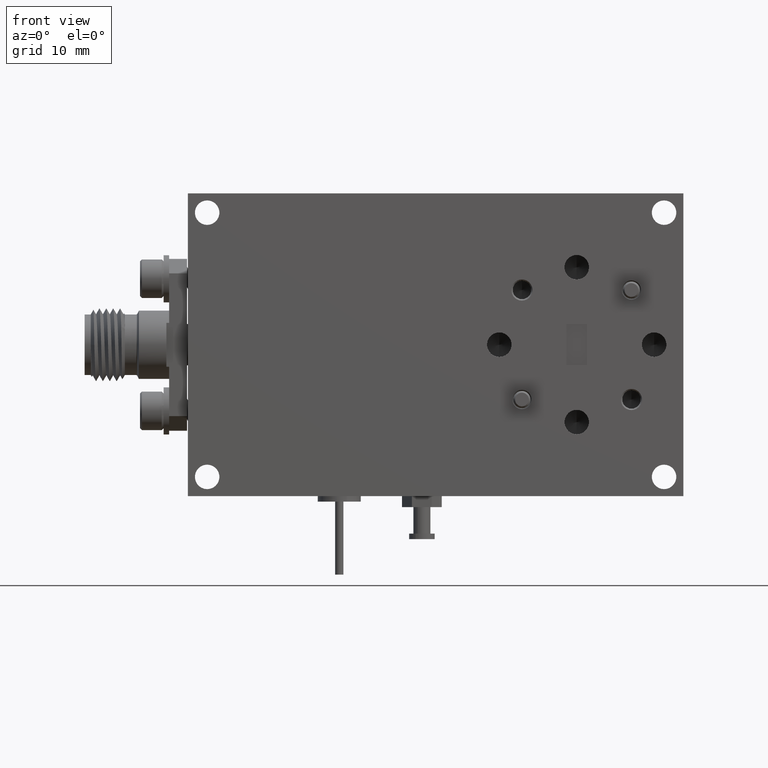
[diagram: clean part render]
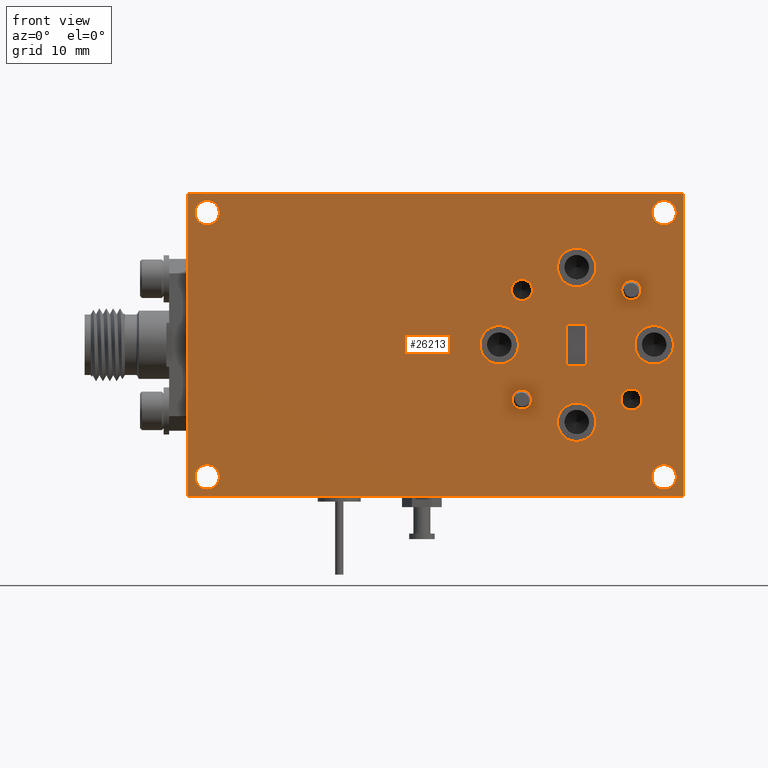
[diagram: same view with one face highlighted and labeled with its STEP entity id]
A machine part, front view. The second image highlights one B-rep face of the part: STEP entity #26213.
In plain terms, the highlighted planar face has unit normal (0, 1, 0).
Its self-contained STEP definition (entity closure, byte-faithful):
#32 = DIRECTION ( 'NONE',  ( 0.0000000000000000000, -1.000000000000000000, 0.0000000000000000000 ) ) ;
#84 = LINE ( 'NONE', #8570, #2586 ) ;
#100 = VERTEX_POINT ( 'NONE', #24952 ) ;
#256 = DIRECTION ( 'NONE',  ( 0.0000000000000000000, 0.0000000000000000000, 1.000000000000000000 ) ) ;
#338 = VERTEX_POINT ( 'NONE', #4029 ) ;
#397 = ORIENTED_EDGE ( 'NONE', *, *, #1543, .F. ) ;
#424 = FACE_BOUND ( 'NONE', #15755, .T. ) ;
#646 = ORIENTED_EDGE ( 'NONE', *, *, #3754, .T. ) ;
#726 = DIRECTION ( 'NONE',  ( 0.0000000000000000000, 0.0000000000000000000, -1.000000000000000000 ) ) ;
#734 = VERTEX_POINT ( 'NONE', #25249 ) ;
#801 = FACE_BOUND ( 'NONE', #25678, .T. ) ;
#880 = CIRCLE ( 'NONE', #8306, 0.06999999999999999300 ) ;
#1078 = CIRCLE ( 'NONE', #1275, 0.03850000000000001300 ) ;
#1150 = AXIS2_PLACEMENT_3D ( 'NONE', #1228, #24133, #17212 ) ;
#1228 = CARTESIAN_POINT ( 'NONE',  ( 0.2312499999999998400, 0.0000000000000000000, -7.185108418705292300E-018 ) ) ;
#1275 = AXIS2_PLACEMENT_3D ( 'NONE', #15384, #10924, #17459 ) ;
#1403 = VERTEX_POINT ( 'NONE', #3476 ) ;
#1413 = CARTESIAN_POINT ( 'NONE',  ( -0.8300000000000001800, 0.0000000000000000000, -0.4800000000000000900 ) ) ;
#1543 = EDGE_CURVE ( 'NONE', #10902, #17982, #9129, .T. ) ;
#1558 = CARTESIAN_POINT ( 'NONE',  ( 0.4754999999999998700, 0.0000000000000000000, -0.07399999999999998200 ) ) ;
#1801 = EDGE_CURVE ( 'NONE', #6308, #20392, #13043, .T. ) ;
#2039 = CARTESIAN_POINT ( 'NONE',  ( 0.5124999999999999600, 0.0000000000000000000, 0.2812500000000000000 ) ) ;
#2103 = EDGE_CURVE ( 'NONE', #23466, #15167, #3784, .T. ) ;
#2172 = LINE ( 'NONE', #25299, #19980 ) ;
#2186 = ORIENTED_EDGE ( 'NONE', *, *, #16759, .F. ) ;
#2217 = FACE_BOUND ( 'NONE', #18613, .T. ) ;
#2254 = VERTEX_POINT ( 'NONE', #21039 ) ;
#2334 = CARTESIAN_POINT ( 'NONE',  ( 0.8300000000000004000, 0.0000000000000000000, 0.4354999999999997800 ) ) ;
#2344 = ORIENTED_EDGE ( 'NONE', *, *, #5385, .T. ) ;
#2449 = CARTESIAN_POINT ( 'NONE',  ( 0.7113737822087165000, 0.0000000000000000000, 0.1988737822087165200 ) ) ;
#2514 = CARTESIAN_POINT ( 'NONE',  ( 0.3136262177912835200, 0.0000000000000000000, 0.1988737822087165200 ) ) ;
#2558 = CIRCLE ( 'NONE', #3879, 0.03500000000000003800 ) ;
#2586 = VECTOR ( 'NONE', #24116, 39.37007874015748100 ) ;
#2593 = CARTESIAN_POINT ( 'NONE',  ( 0.8300000000000004000, 0.0000000000000000000, -0.5245000000000000800 ) ) ;
#2825 = DIRECTION ( 'NONE',  ( -0.0000000000000000000, -1.000000000000000000, -0.0000000000000000000 ) ) ;
#3058 = CARTESIAN_POINT ( 'NONE',  ( 0.7113737822087165000, 0.0000000000000000000, -0.1603737822087164300 ) ) ;
#3080 = AXIS2_PLACEMENT_3D ( 'NONE', #19277, #5422, #16599 ) ;
#3133 = EDGE_CURVE ( 'NONE', #22204, #23770, #15988, .T. ) ;
#3204 = CIRCLE ( 'NONE', #22813, 0.04449999999999989400 ) ;
#3395 = CARTESIAN_POINT ( 'NONE',  ( 0.3136262177912834700, 0.0000000000000000000, -0.2338737822087164900 ) ) ;
#3476 = CARTESIAN_POINT ( 'NONE',  ( 0.7113737822087165000, 0.0000000000000000000, 0.1638737822087164800 ) ) ;
#3526 = DIRECTION ( 'NONE',  ( 1.000000000000000000, -0.0000000000000000000, -1.153652024351462300E-016 ) ) ;
#3754 = EDGE_CURVE ( 'NONE', #22008, #23466, #20372, .T. ) ;
#3784 = LINE ( 'NONE', #28330, #8380 ) ;
#3864 = ORIENTED_EDGE ( 'NONE', *, *, #5215, .T. ) ;
#3879 = AXIS2_PLACEMENT_3D ( 'NONE', #9067, #29184, #6673 ) ;
#3946 = EDGE_CURVE ( 'NONE', #338, #5837, #84, .T. ) ;
#3967 = DIRECTION ( 'NONE',  ( 0.0000000000000000000, 0.0000000000000000000, -1.000000000000000000 ) ) ;
#4029 = CARTESIAN_POINT ( 'NONE',  ( 0.8999999999999998000, 0.0000000000000000000, -0.5500000000000002700 ) ) ;
#4389 = ORIENTED_EDGE ( 'NONE', *, *, #13274, .F. ) ;
#4547 = EDGE_CURVE ( 'NONE', #23770, #22204, #10063, .T. ) ;
#4587 = CIRCLE ( 'NONE', #9765, 0.04449999999999989400 ) ;
#4702 = AXIS2_PLACEMENT_3D ( 'NONE', #25170, #11507, #256 ) ;
#4826 = DIRECTION ( 'NONE',  ( 0.0000000000000000000, 0.0000000000000000000, -1.000000000000000000 ) ) ;
#4852 = DIRECTION ( 'NONE',  ( 0.0000000000000000000, -1.000000000000000000, 0.0000000000000000000 ) ) ;
#5007 = DIRECTION ( 'NONE',  ( 0.0000000000000000000, 0.0000000000000000000, -1.000000000000000000 ) ) ;
#5008 = CARTESIAN_POINT ( 'NONE',  ( 0.8999999999999998000, 0.0000000000000000000, 0.5499999999999998200 ) ) ;
#5115 = DIRECTION ( 'NONE',  ( 0.0000000000000000000, -1.000000000000000000, 0.0000000000000000000 ) ) ;
#5215 = EDGE_CURVE ( 'NONE', #6987, #29228, #11788, .T. ) ;
#5252 = EDGE_CURVE ( 'NONE', #1403, #24943, #26760, .T. ) ;
#5260 = CARTESIAN_POINT ( 'NONE',  ( 0.5494999999999998800, 0.0000000000000000000, -0.07399999999999999600 ) ) ;
#5316 = CARTESIAN_POINT ( 'NONE',  ( 0.2312499999999998400, 0.0000000000000000000, -7.185108418705292300E-018 ) ) ;
#5334 = AXIS2_PLACEMENT_3D ( 'NONE', #17742, #20342, #6462 ) ;
#5385 = EDGE_CURVE ( 'NONE', #15167, #28915, #17785, .T. ) ;
#5418 = ORIENTED_EDGE ( 'NONE', *, *, #3946, .F. ) ;
#5422 = DIRECTION ( 'NONE',  ( -0.0000000000000000000, 1.000000000000000000, -0.0000000000000000000 ) ) ;
#5684 = EDGE_CURVE ( 'NONE', #22055, #11793, #10730, .T. ) ;
#5749 = EDGE_CURVE ( 'NONE', #11969, #16284, #1078, .T. ) ;
#5807 = FACE_OUTER_BOUND ( 'NONE', #26139, .T. ) ;
#5837 = VERTEX_POINT ( 'NONE', #29079 ) ;
#5959 = CARTESIAN_POINT ( 'NONE',  ( 0.8300000000000004000, 0.0000000000000000000, 0.5244999999999995200 ) ) ;
#6038 = DIRECTION ( 'NONE',  ( 0.0000000000000000000, 0.0000000000000000000, -1.000000000000000000 ) ) ;
#6244 = CARTESIAN_POINT ( 'NONE',  ( 0.7937499999999999600, 0.0000000000000000000, -7.185108418705292300E-018 ) ) ;
#6307 = ORIENTED_EDGE ( 'NONE', *, *, #13516, .F. ) ;
#6308 = VERTEX_POINT ( 'NONE', #5959 ) ;
#6409 = EDGE_CURVE ( 'NONE', #734, #8645, #3204, .T. ) ;
#6462 = DIRECTION ( 'NONE',  ( 0.0000000000000000000, 0.0000000000000000000, -1.000000000000000000 ) ) ;
#6521 = CARTESIAN_POINT ( 'NONE',  ( -0.8300000000000001800, 0.0000000000000000000, -0.5244999999999999700 ) ) ;
#6612 = CARTESIAN_POINT ( 'NONE',  ( 0.8300000000000004000, 0.0000000000000000000, 0.4799999999999996500 ) ) ;
#6650 = AXIS2_PLACEMENT_3D ( 'NONE', #1413, #14878, #17388 ) ;
#6661 = CARTESIAN_POINT ( 'NONE',  ( 0.5494999999999998800, 0.0000000000000000000, -0.07399999999999999600 ) ) ;
#6669 = ORIENTED_EDGE ( 'NONE', *, *, #17326, .T. ) ;
#6673 = DIRECTION ( 'NONE',  ( 0.0000000000000000000, 0.0000000000000000000, -1.000000000000000000 ) ) ;
#6696 = VERTEX_POINT ( 'NONE', #22832 ) ;
#6708 = DIRECTION ( 'NONE',  ( -0.0000000000000000000, 1.000000000000000000, -0.0000000000000000000 ) ) ;
#6934 = DIRECTION ( 'NONE',  ( 0.0000000000000000000, -0.0000000000000000000, 1.000000000000000000 ) ) ;
#6987 = VERTEX_POINT ( 'NONE', #2593 ) ;
#7063 = EDGE_CURVE ( 'NONE', #24560, #21839, #15604, .T. ) ;
#7295 = DIRECTION ( 'NONE',  ( 0.0000000000000000000, 0.0000000000000000000, -1.000000000000000000 ) ) ;
#7319 = CARTESIAN_POINT ( 'NONE',  ( 0.7113737822087165000, 0.0000000000000000000, -0.1988737822087164600 ) ) ;
#7328 = AXIS2_PLACEMENT_3D ( 'NONE', #16333, #4852, #21127 ) ;
#7535 = ORIENTED_EDGE ( 'NONE', *, *, #5684, .F. ) ;
#7608 = ORIENTED_EDGE ( 'NONE', *, *, #15241, .F. ) ;
#7827 = CARTESIAN_POINT ( 'NONE',  ( 0.5494999999999998800, 0.0000000000000000000, 0.07399999999999999600 ) ) ;
#7875 = DIRECTION ( 'NONE',  ( 0.0000000000000000000, -1.000000000000000000, 0.0000000000000000000 ) ) ;
#8306 = AXIS2_PLACEMENT_3D ( 'NONE', #17701, #28726, #6038 ) ;
#8345 = VERTEX_POINT ( 'NONE', #27290 ) ;
#8348 = VERTEX_POINT ( 'NONE', #11538 ) ;
#8380 = VECTOR ( 'NONE', #3526, 39.37007874015748100 ) ;
#8562 = AXIS2_PLACEMENT_3D ( 'NONE', #6612, #6708, #13368 ) ;
#8570 = CARTESIAN_POINT ( 'NONE',  ( 0.8999999999999998000, 0.0000000000000000000, -0.5500000000000002700 ) ) ;
#8583 = VECTOR ( 'NONE', #8741, 39.37007874015748100 ) ;
#8641 = VECTOR ( 'NONE', #14557, 39.37007874015748100 ) ;
#8645 = VERTEX_POINT ( 'NONE', #23378 ) ;
#8741 = DIRECTION ( 'NONE',  ( -0.0000000000000000000, -0.0000000000000000000, -1.000000000000000000 ) ) ;
#8759 = ORIENTED_EDGE ( 'NONE', *, *, #5252, .F. ) ;
#8799 = DIRECTION ( 'NONE',  ( 0.0000000000000000000, 0.0000000000000000000, 1.000000000000000000 ) ) ;
#9067 = CARTESIAN_POINT ( 'NONE',  ( 0.7113737822087165000, 0.0000000000000000000, 0.1988737822087165200 ) ) ;
#9129 = CIRCLE ( 'NONE', #24178, 0.03850000000000001300 ) ;
#9173 = ORIENTED_EDGE ( 'NONE', *, *, #6409, .T. ) ;
#9261 = CIRCLE ( 'NONE', #6650, 0.04449999999999989400 ) ;
#9363 = FACE_BOUND ( 'NONE', #14062, .T. ) ;
#9499 = AXIS2_PLACEMENT_3D ( 'NONE', #23994, #7875, #17075 ) ;
#9713 = DIRECTION ( 'NONE',  ( -0.0000000000000000000, -1.000000000000000000, -0.0000000000000000000 ) ) ;
#9765 = AXIS2_PLACEMENT_3D ( 'NONE', #18829, #25676, #18726 ) ;
#10000 = EDGE_LOOP ( 'NONE', ( #15045, #9173 ) ) ;
#10038 = EDGE_LOOP ( 'NONE', ( #397, #28749 ) ) ;
#10063 = CIRCLE ( 'NONE', #18361, 0.06999999999999996500 ) ;
#10076 = FACE_BOUND ( 'NONE', #15549, .T. ) ;
#10087 = VERTEX_POINT ( 'NONE', #21165 ) ;
#10205 = ORIENTED_EDGE ( 'NONE', *, *, #20290, .F. ) ;
#10394 = EDGE_LOOP ( 'NONE', ( #15147, #6669 ) ) ;
#10730 = CIRCLE ( 'NONE', #9499, 0.07000000000000000700 ) ;
#10901 = ORIENTED_EDGE ( 'NONE', *, *, #28480, .T. ) ;
#10902 = VERTEX_POINT ( 'NONE', #11795 ) ;
#10924 = DIRECTION ( 'NONE',  ( -0.0000000000000000000, -1.000000000000000000, -0.0000000000000000000 ) ) ;
#10981 = DIRECTION ( 'NONE',  ( -0.0000000000000000000, 1.000000000000000000, -0.0000000000000000000 ) ) ;
#11394 = CARTESIAN_POINT ( 'NONE',  ( -0.8300000000000001800, 0.0000000000000000000, 0.4799999999999998700 ) ) ;
#11502 = FACE_BOUND ( 'NONE', #10038, .T. ) ;
#11503 = DIRECTION ( 'NONE',  ( 0.0000000000000000000, 0.0000000000000000000, 1.000000000000000000 ) ) ;
#11507 = DIRECTION ( 'NONE',  ( -0.0000000000000000000, 1.000000000000000000, -0.0000000000000000000 ) ) ;
#11538 = CARTESIAN_POINT ( 'NONE',  ( 0.2312499999999998400, 0.0000000000000000000, -0.06999999999999996500 ) ) ;
#11548 = DIRECTION ( 'NONE',  ( -0.0000000000000000000, -1.000000000000000000, -0.0000000000000000000 ) ) ;
#11555 = LINE ( 'NONE', #21658, #14418 ) ;
#11627 = EDGE_CURVE ( 'NONE', #24943, #1403, #2558, .T. ) ;
#11698 = CARTESIAN_POINT ( 'NONE',  ( 0.0000000000000000000, 0.0000000000000000000, 0.0000000000000000000 ) ) ;
#11704 = CARTESIAN_POINT ( 'NONE',  ( 0.5124999999999999600, 0.0000000000000000000, -0.2112499999999999900 ) ) ;
#11708 = DIRECTION ( 'NONE',  ( 0.0000000000000000000, 0.0000000000000000000, -1.000000000000000000 ) ) ;
#11728 = EDGE_CURVE ( 'NONE', #2254, #8345, #2172, .T. ) ;
#11788 = CIRCLE ( 'NONE', #4702, 0.04449999999999989400 ) ;
#11793 = VERTEX_POINT ( 'NONE', #14031 ) ;
#11795 = CARTESIAN_POINT ( 'NONE',  ( 0.7113737822087165000, 0.0000000000000000000, -0.2373737822087164700 ) ) ;
#11885 = ORIENTED_EDGE ( 'NONE', *, *, #27879, .T. ) ;
#11897 = EDGE_LOOP ( 'NONE', ( #10901, #3864 ) ) ;
#11969 = VERTEX_POINT ( 'NONE', #14421 ) ;
#12149 = AXIS2_PLACEMENT_3D ( 'NONE', #11394, #24955, #11503 ) ;
#12197 = DIRECTION ( 'NONE',  ( -1.000000000000000000, 0.0000000000000000000, 2.307304048702924600E-016 ) ) ;
#12831 = CIRCLE ( 'NONE', #8562, 0.04449999999999989400 ) ;
#12886 = CIRCLE ( 'NONE', #17674, 0.03850000000000001300 ) ;
#12963 = ORIENTED_EDGE ( 'NONE', *, *, #3133, .F. ) ;
#13043 = CIRCLE ( 'NONE', #22051, 0.04449999999999989400 ) ;
#13160 = ORIENTED_EDGE ( 'NONE', *, *, #11627, .F. ) ;
#13244 = CARTESIAN_POINT ( 'NONE',  ( 0.4754999999999998700, 0.0000000000000000000, 0.07400000000000001000 ) ) ;
#13274 = EDGE_CURVE ( 'NONE', #5837, #2254, #11555, .T. ) ;
#13368 = DIRECTION ( 'NONE',  ( 0.0000000000000000000, 0.0000000000000000000, 1.000000000000000000 ) ) ;
#13489 = DIRECTION ( 'NONE',  ( 0.0000000000000000000, 1.000000000000000000, 0.0000000000000000000 ) ) ;
#13516 = EDGE_CURVE ( 'NONE', #100, #20284, #880, .T. ) ;
#13932 = ORIENTED_EDGE ( 'NONE', *, *, #7063, .F. ) ;
#13968 = FACE_BOUND ( 'NONE', #10394, .T. ) ;
#14031 = CARTESIAN_POINT ( 'NONE',  ( 0.5124999999999999600, 0.0000000000000000000, 0.2112499999999999900 ) ) ;
#14045 = CARTESIAN_POINT ( 'NONE',  ( 0.3136262177912834700, 0.0000000000000000000, -0.1638737822087165400 ) ) ;
#14062 = EDGE_LOOP ( 'NONE', ( #15310, #22639 ) ) ;
#14418 = VECTOR ( 'NONE', #19253, 39.37007874015748100 ) ;
#14421 = CARTESIAN_POINT ( 'NONE',  ( 0.3136262177912835200, 0.0000000000000000000, 0.2373737822087165200 ) ) ;
#14557 = DIRECTION ( 'NONE',  ( 0.0000000000000000000, 0.0000000000000000000, 1.000000000000000000 ) ) ;
#14600 = CIRCLE ( 'NONE', #3080, 0.04449999999999989400 ) ;
#14795 = CARTESIAN_POINT ( 'NONE',  ( 0.7113737822087165000, 0.0000000000000000000, -0.1988737822087164600 ) ) ;
#14834 = CARTESIAN_POINT ( 'NONE',  ( 0.3136262177912835200, 0.0000000000000000000, 0.1603737822087165100 ) ) ;
#14878 = DIRECTION ( 'NONE',  ( -0.0000000000000000000, 1.000000000000000000, -0.0000000000000000000 ) ) ;
#15045 = ORIENTED_EDGE ( 'NONE', *, *, #24902, .T. ) ;
#15147 = ORIENTED_EDGE ( 'NONE', *, *, #1801, .T. ) ;
#15167 = VERTEX_POINT ( 'NONE', #7827 ) ;
#15241 = EDGE_CURVE ( 'NONE', #20284, #100, #25796, .T. ) ;
#15310 = ORIENTED_EDGE ( 'NONE', *, *, #17505, .F. ) ;
#15333 = CIRCLE ( 'NONE', #5334, 0.03499999999999996900 ) ;
#15336 = AXIS2_PLACEMENT_3D ( 'NONE', #2449, #16147, #11708 ) ;
#15367 = FACE_BOUND ( 'NONE', #17699, .T. ) ;
#15384 = CARTESIAN_POINT ( 'NONE',  ( 0.3136262177912835200, 0.0000000000000000000, 0.1988737822087165200 ) ) ;
#15549 = EDGE_LOOP ( 'NONE', ( #28529, #20193 ) ) ;
#15604 = CIRCLE ( 'NONE', #18997, 0.03499999999999996900 ) ;
#15755 = EDGE_LOOP ( 'NONE', ( #16532, #26477 ) ) ;
#15988 = CIRCLE ( 'NONE', #7328, 0.06999999999999996500 ) ;
#16147 = DIRECTION ( 'NONE',  ( -0.0000000000000000000, -1.000000000000000000, -0.0000000000000000000 ) ) ;
#16284 = VERTEX_POINT ( 'NONE', #14834 ) ;
#16333 = CARTESIAN_POINT ( 'NONE',  ( 0.5124999999999999600, 0.0000000000000000000, -0.2812500000000000000 ) ) ;
#16532 = ORIENTED_EDGE ( 'NONE', *, *, #19523, .F. ) ;
#16599 = DIRECTION ( 'NONE',  ( 0.0000000000000000000, 0.0000000000000000000, 1.000000000000000000 ) ) ;
#16741 = DIRECTION ( 'NONE',  ( -0.0000000000000000000, -1.000000000000000000, -0.0000000000000000000 ) ) ;
#16759 = EDGE_CURVE ( 'NONE', #21839, #24560, #15333, .T. ) ;
#17075 = DIRECTION ( 'NONE',  ( 0.0000000000000000000, 0.0000000000000000000, -1.000000000000000000 ) ) ;
#17212 = DIRECTION ( 'NONE',  ( 0.0000000000000000000, 0.0000000000000000000, -1.000000000000000000 ) ) ;
#17326 = EDGE_CURVE ( 'NONE', #20392, #6308, #12831, .T. ) ;
#17388 = DIRECTION ( 'NONE',  ( 0.0000000000000000000, 0.0000000000000000000, 1.000000000000000000 ) ) ;
#17426 = CARTESIAN_POINT ( 'NONE',  ( 0.5124999999999999600, 0.0000000000000000000, -0.2812500000000000000 ) ) ;
#17459 = DIRECTION ( 'NONE',  ( 0.0000000000000000000, 0.0000000000000000000, -1.000000000000000000 ) ) ;
#17487 = FACE_BOUND ( 'NONE', #18875, .T. ) ;
#17505 = EDGE_CURVE ( 'NONE', #16284, #11969, #20614, .T. ) ;
#17593 = EDGE_CURVE ( 'NONE', #26521, #10087, #9261, .T. ) ;
#17674 = AXIS2_PLACEMENT_3D ( 'NONE', #7319, #9713, #726 ) ;
#17699 = EDGE_LOOP ( 'NONE', ( #7608, #6307 ) ) ;
#17701 = CARTESIAN_POINT ( 'NONE',  ( 0.7937499999999999600, 0.0000000000000000000, -7.185108418705292300E-018 ) ) ;
#17742 = CARTESIAN_POINT ( 'NONE',  ( 0.3136262177912834700, 0.0000000000000000000, -0.1988737822087165200 ) ) ;
#17785 = LINE ( 'NONE', #27974, #8583 ) ;
#17982 = VERTEX_POINT ( 'NONE', #3058 ) ;
#18009 = DIRECTION ( 'NONE',  ( 0.0000000000000000000, 0.0000000000000000000, -1.000000000000000000 ) ) ;
#18142 = ORIENTED_EDGE ( 'NONE', *, *, #11728, .F. ) ;
#18191 = FACE_BOUND ( 'NONE', #25835, .T. ) ;
#18250 = DIRECTION ( 'NONE',  ( 1.000000000000000000, -0.0000000000000000000, -1.517693329813479600E-016 ) ) ;
#18267 = CARTESIAN_POINT ( 'NONE',  ( 0.3136262177912834700, 0.0000000000000000000, -0.1988737822087165200 ) ) ;
#18361 = AXIS2_PLACEMENT_3D ( 'NONE', #17426, #22035, #3967 ) ;
#18613 = EDGE_LOOP ( 'NONE', ( #2186, #13932 ) ) ;
#18674 = ORIENTED_EDGE ( 'NONE', *, *, #27095, .F. ) ;
#18726 = DIRECTION ( 'NONE',  ( 0.0000000000000000000, 0.0000000000000000000, 1.000000000000000000 ) ) ;
#18829 = CARTESIAN_POINT ( 'NONE',  ( -0.8300000000000001800, 0.0000000000000000000, -0.4800000000000000900 ) ) ;
#18875 = EDGE_LOOP ( 'NONE', ( #10205, #7535 ) ) ;
#18997 = AXIS2_PLACEMENT_3D ( 'NONE', #18267, #11548, #5007 ) ;
#19253 = DIRECTION ( 'NONE',  ( -0.0000000000000000000, -0.0000000000000000000, 1.000000000000000000 ) ) ;
#19277 = CARTESIAN_POINT ( 'NONE',  ( 0.8300000000000004000, 0.0000000000000000000, -0.4800000000000002000 ) ) ;
#19286 = EDGE_CURVE ( 'NONE', #10087, #26521, #4587, .T. ) ;
#19362 = CARTESIAN_POINT ( 'NONE',  ( 0.5124999999999999600, 0.0000000000000000000, -0.3512499999999999500 ) ) ;
#19523 = EDGE_CURVE ( 'NONE', #8348, #6696, #25209, .T. ) ;
#19650 = FACE_BOUND ( 'NONE', #10000, .T. ) ;
#19863 = CARTESIAN_POINT ( 'NONE',  ( 0.5124999999999999600, 0.0000000000000000000, 0.3512499999999999500 ) ) ;
#19964 = LINE ( 'NONE', #5008, #20669 ) ;
#19980 = VECTOR ( 'NONE', #18250, 39.37007874015748100 ) ;
#20193 = ORIENTED_EDGE ( 'NONE', *, *, #17593, .T. ) ;
#20284 = VERTEX_POINT ( 'NONE', #22339 ) ;
#20290 = EDGE_CURVE ( 'NONE', #11793, #22055, #25576, .T. ) ;
#20342 = DIRECTION ( 'NONE',  ( -0.0000000000000000000, -1.000000000000000000, -0.0000000000000000000 ) ) ;
#20372 = LINE ( 'NONE', #28137, #8641 ) ;
#20392 = VERTEX_POINT ( 'NONE', #2334 ) ;
#20614 = CIRCLE ( 'NONE', #27057, 0.03850000000000001300 ) ;
#20669 = VECTOR ( 'NONE', #7295, 39.37007874015748100 ) ;
#21039 = CARTESIAN_POINT ( 'NONE',  ( -0.9000000000000001300, 0.0000000000000000000, 0.5500000000000001600 ) ) ;
#21127 = DIRECTION ( 'NONE',  ( 0.0000000000000000000, 0.0000000000000000000, -1.000000000000000000 ) ) ;
#21165 = CARTESIAN_POINT ( 'NONE',  ( -0.8300000000000001800, 0.0000000000000000000, -0.4355000000000001600 ) ) ;
#21167 = EDGE_LOOP ( 'NONE', ( #29579, #12963 ) ) ;
#21338 = CARTESIAN_POINT ( 'NONE',  ( 0.8300000000000004000, 0.0000000000000000000, -0.4355000000000003300 ) ) ;
#21658 = CARTESIAN_POINT ( 'NONE',  ( -0.9000000000000001300, 0.0000000000000000000, 0.5500000000000001600 ) ) ;
#21839 = VERTEX_POINT ( 'NONE', #3395 ) ;
#22008 = VERTEX_POINT ( 'NONE', #1558 ) ;
#22035 = DIRECTION ( 'NONE',  ( 0.0000000000000000000, -1.000000000000000000, 0.0000000000000000000 ) ) ;
#22051 = AXIS2_PLACEMENT_3D ( 'NONE', #22418, #29312, #8799 ) ;
#22055 = VERTEX_POINT ( 'NONE', #19863 ) ;
#22112 = DIRECTION ( 'NONE',  ( 0.0000000000000000000, 0.0000000000000000000, -1.000000000000000000 ) ) ;
#22204 = VERTEX_POINT ( 'NONE', #11704 ) ;
#22228 = DIRECTION ( 'NONE',  ( 0.0000000000000000000, 0.0000000000000000000, 1.000000000000000000 ) ) ;
#22339 = CARTESIAN_POINT ( 'NONE',  ( 0.7937499999999999600, 0.0000000000000000000, -0.06999999999999999300 ) ) ;
#22418 = CARTESIAN_POINT ( 'NONE',  ( 0.8300000000000004000, 0.0000000000000000000, 0.4799999999999996500 ) ) ;
#22443 = LINE ( 'NONE', #5260, #26382 ) ;
#22639 = ORIENTED_EDGE ( 'NONE', *, *, #5749, .F. ) ;
#22760 = CARTESIAN_POINT ( 'NONE',  ( 0.7113737822087165000, 0.0000000000000000000, 0.2338737822087165500 ) ) ;
#22813 = AXIS2_PLACEMENT_3D ( 'NONE', #24843, #10981, #22228 ) ;
#22832 = CARTESIAN_POINT ( 'NONE',  ( 0.2312499999999998400, 0.0000000000000000000, 0.06999999999999995100 ) ) ;
#23312 = DIRECTION ( 'NONE',  ( 0.0000000000000000000, 0.0000000000000000000, -1.000000000000000000 ) ) ;
#23378 = CARTESIAN_POINT ( 'NONE',  ( -0.8300000000000001800, 0.0000000000000000000, 0.5244999999999997400 ) ) ;
#23466 = VERTEX_POINT ( 'NONE', #13244 ) ;
#23770 = VERTEX_POINT ( 'NONE', #19362 ) ;
#23839 = AXIS2_PLACEMENT_3D ( 'NONE', #11698, #13489, #6934 ) ;
#23948 = DIRECTION ( 'NONE',  ( 0.0000000000000000000, 0.0000000000000000000, -1.000000000000000000 ) ) ;
#23994 = CARTESIAN_POINT ( 'NONE',  ( 0.5124999999999999600, 0.0000000000000000000, 0.2812500000000000000 ) ) ;
#24116 = DIRECTION ( 'NONE',  ( -1.000000000000000000, 0.0000000000000000000, 1.138269997360109700E-016 ) ) ;
#24133 = DIRECTION ( 'NONE',  ( 0.0000000000000000000, -1.000000000000000000, 0.0000000000000000000 ) ) ;
#24178 = AXIS2_PLACEMENT_3D ( 'NONE', #14795, #16741, #23948 ) ;
#24261 = AXIS2_PLACEMENT_3D ( 'NONE', #2039, #32, #18009 ) ;
#24560 = VERTEX_POINT ( 'NONE', #14045 ) ;
#24670 = EDGE_CURVE ( 'NONE', #6696, #8348, #26885, .T. ) ;
#24843 = CARTESIAN_POINT ( 'NONE',  ( -0.8300000000000001800, 0.0000000000000000000, 0.4799999999999998700 ) ) ;
#24902 = EDGE_CURVE ( 'NONE', #8645, #734, #28677, .T. ) ;
#24943 = VERTEX_POINT ( 'NONE', #22760 ) ;
#24952 = CARTESIAN_POINT ( 'NONE',  ( 0.7937499999999999600, 0.0000000000000000000, 0.06999999999999997900 ) ) ;
#24955 = DIRECTION ( 'NONE',  ( -0.0000000000000000000, 1.000000000000000000, -0.0000000000000000000 ) ) ;
#25170 = CARTESIAN_POINT ( 'NONE',  ( 0.8300000000000004000, 0.0000000000000000000, -0.4800000000000002000 ) ) ;
#25209 = CIRCLE ( 'NONE', #1150, 0.06999999999999995100 ) ;
#25249 = CARTESIAN_POINT ( 'NONE',  ( -0.8300000000000001800, 0.0000000000000000000, 0.4355000000000000000 ) ) ;
#25263 = PLANE ( 'NONE',  #23839 ) ;
#25299 = CARTESIAN_POINT ( 'NONE',  ( 0.8999999999999998000, 0.0000000000000000000, 0.5499999999999998200 ) ) ;
#25387 = FACE_BOUND ( 'NONE', #11897, .T. ) ;
#25576 = CIRCLE ( 'NONE', #24261, 0.07000000000000000700 ) ;
#25676 = DIRECTION ( 'NONE',  ( -0.0000000000000000000, 1.000000000000000000, -0.0000000000000000000 ) ) ;
#25678 = EDGE_LOOP ( 'NONE', ( #8759, #13160 ) ) ;
#25771 = FACE_BOUND ( 'NONE', #21167, .T. ) ;
#25796 = CIRCLE ( 'NONE', #25921, 0.06999999999999999300 ) ;
#25835 = EDGE_LOOP ( 'NONE', ( #646, #26267, #2344, #11885 ) ) ;
#25921 = AXIS2_PLACEMENT_3D ( 'NONE', #6244, #29027, #22112 ) ;
#26139 = EDGE_LOOP ( 'NONE', ( #4389, #5418, #18674, #18142 ) ) ;
#26213 = ADVANCED_FACE ( 'NONE', ( #11502, #9363, #801, #2217, #10076, #13968, #25387, #19650, #15367, #17487, #424, #25771, #5807, #18191 ), #25263, .F. ) ;
#26267 = ORIENTED_EDGE ( 'NONE', *, *, #2103, .T. ) ;
#26382 = VECTOR ( 'NONE', #12197, 39.37007874015748100 ) ;
#26477 = ORIENTED_EDGE ( 'NONE', *, *, #24670, .F. ) ;
#26521 = VERTEX_POINT ( 'NONE', #6521 ) ;
#26744 = EDGE_CURVE ( 'NONE', #17982, #10902, #12886, .T. ) ;
#26760 = CIRCLE ( 'NONE', #15336, 0.03500000000000003800 ) ;
#26885 = CIRCLE ( 'NONE', #28553, 0.06999999999999995100 ) ;
#27057 = AXIS2_PLACEMENT_3D ( 'NONE', #2514, #2825, #4826 ) ;
#27095 = EDGE_CURVE ( 'NONE', #8345, #338, #19964, .T. ) ;
#27290 = CARTESIAN_POINT ( 'NONE',  ( 0.8999999999999998000, 0.0000000000000000000, 0.5499999999999998200 ) ) ;
#27879 = EDGE_CURVE ( 'NONE', #28915, #22008, #22443, .T. ) ;
#27974 = CARTESIAN_POINT ( 'NONE',  ( 0.5494999999999998800, 0.0000000000000000000, -0.07399999999999999600 ) ) ;
#28137 = CARTESIAN_POINT ( 'NONE',  ( 0.4754999999999998700, 0.0000000000000000000, -0.07399999999999998200 ) ) ;
#28330 = CARTESIAN_POINT ( 'NONE',  ( 0.5494999999999998800, 0.0000000000000000000, 0.07399999999999999600 ) ) ;
#28480 = EDGE_CURVE ( 'NONE', #29228, #6987, #14600, .T. ) ;
#28529 = ORIENTED_EDGE ( 'NONE', *, *, #19286, .T. ) ;
#28553 = AXIS2_PLACEMENT_3D ( 'NONE', #5316, #5115, #23312 ) ;
#28677 = CIRCLE ( 'NONE', #12149, 0.04449999999999989400 ) ;
#28726 = DIRECTION ( 'NONE',  ( 0.0000000000000000000, -1.000000000000000000, 0.0000000000000000000 ) ) ;
#28749 = ORIENTED_EDGE ( 'NONE', *, *, #26744, .F. ) ;
#28915 = VERTEX_POINT ( 'NONE', #6661 ) ;
#29027 = DIRECTION ( 'NONE',  ( 0.0000000000000000000, -1.000000000000000000, 0.0000000000000000000 ) ) ;
#29079 = CARTESIAN_POINT ( 'NONE',  ( -0.9000000000000001300, 0.0000000000000000000, -0.5500000000000000400 ) ) ;
#29184 = DIRECTION ( 'NONE',  ( -0.0000000000000000000, -1.000000000000000000, -0.0000000000000000000 ) ) ;
#29228 = VERTEX_POINT ( 'NONE', #21338 ) ;
#29312 = DIRECTION ( 'NONE',  ( -0.0000000000000000000, 1.000000000000000000, -0.0000000000000000000 ) ) ;
#29579 = ORIENTED_EDGE ( 'NONE', *, *, #4547, .F. ) ;